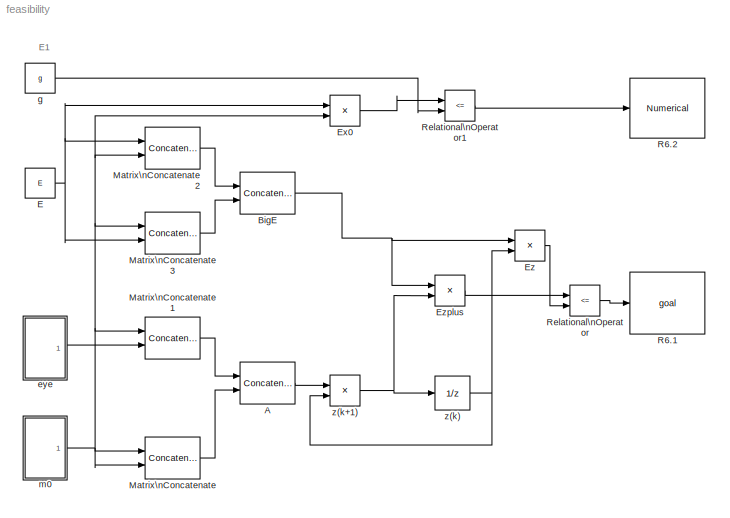
MODEL feasibility
KIND model
BLOCK [Concatenate] A
  Mode = Multidimensional array
  Ports = [2, 1]
  SID = 14
BLOCK [Concatenate] BigE
  Mode = Multidimensional array
  Ports = [2, 1]
  SID = 26
BLOCK [Constant] E
  SID = 23
  Value = E
BLOCK [Product] Ex0
  InputSameDT = off
  Multiplication = Matrix(*)
  OutDataTypeStr = Inherit: Inherit via internal rule
  Ports = [2, 1]
  RndMeth = Floor
  SID = 34
  SaturateOnIntegerOverflow = off
BLOCK [Product] Ez
  InputSameDT = off
  Multiplication = Matrix(*)
  OutDataTypeStr = Inherit: Inherit via internal rule
  Ports = [2, 1]
  RndMeth = Floor
  SID = 27
  SaturateOnIntegerOverflow = off
BLOCK [Product] Ezplus
  InputSameDT = off
  Multiplication = Matrix(*)
  OutDataTypeStr = Inherit: Inherit via internal rule
  Ports = [2, 1]
  RndMeth = Floor
  SID = 28
  SaturateOnIntegerOverflow = off
BLOCK [Concatenate] Matrix\nConcatenate
  ConcatenateDimension = 2
  Mode = Multidimensional array
  Ports = [2, 1]
  SID = 1
BLOCK [Concatenate] Matrix\nConcatenate1
  ConcatenateDimension = 2
  Mode = Multidimensional array
  Ports = [2, 1]
  SID = 8
BLOCK [Concatenate] Matrix\nConcatenate2
  ConcatenateDimension = 2
  Mode = Multidimensional array
  Ports = [2, 1]
  SID = 24
BLOCK [Concatenate] Matrix\nConcatenate3
  ConcatenateDimension = 2
  Mode = Multidimensional array
  Ports = [2, 1]
  SID = 25
BLOCK [Reference] R6.1  REF=goal/goal  (lib defined in mdl_8f4c38bfa861)
  FunctionWithSeparateData = off
  GeneratePreprocessorConditionals = off
  Ports = [1]
  SID = 31
  ShowPortLabels = FromPortIcon
  SourceBlock = goal/goal
  SourceType = Goal
  SystemSampleTime = -1
BLOCK [Reference] R6.2  REF=Numerical/Numerical
  FunctionWithSeparateData = off
  GeneratePreprocessorConditionals = off
  Ports = [1]
  SID = 32
  ShowPortLabels = FromPortIcon
  SourceBlock = Numerical/Numerical
  SourceType = Numerical
  SystemSampleTime = -1
BLOCK [RelationalOperator] Relational\nOperator
  InputSameDT = off
  Operator = <=
  OutDataTypeStr = boolean
  Ports = [2, 1]
  SID = 30
BLOCK [RelationalOperator] Relational\nOperator1
  InputSameDT = off
  Operator = <=
  OutDataTypeStr = boolean
  Ports = [2, 1]
  SID = 35
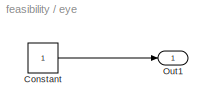
BLOCK [SubSystem] eye
  FunctionWithSeparateData = off
  MaskHideContents = off
  MinAlgLoopOccurrences = off
  Opaque = off
  Ports = [0, 1]
  PropExecContextOutsideSubsystem = off
  RTWSystemCode = Auto
  RequestExecContextInheritance = off
  SID = 19
BLOCK [Constant] eye/Constant
  SID = 9
BLOCK [Outport] eye/Out1
  IconDisplay = Port number
  SID = 20
BLOCK [Constant] g
  SID = 33
  Value = g
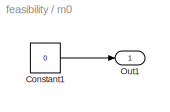
BLOCK [SubSystem] m0
  FunctionWithSeparateData = off
  MaskHideContents = off
  MinAlgLoopOccurrences = off
  Opaque = off
  Ports = [0, 1]
  PropExecContextOutsideSubsystem = off
  RTWSystemCode = Auto
  RequestExecContextInheritance = off
  SID = 21
BLOCK [Constant] m0/Constant1
  SID = 10
  Value = 0
BLOCK [Outport] m0/Out1
  IconDisplay = Port number
  SID = 22
BLOCK [UnitDelay] z(k)
  InitialCondition = [1;0.5]
  InputProcessing = Elements as channels (sample based)
  SID = 12
  SampleTime = -1
BLOCK [Product] z(k+1)
  InputSameDT = off
  Multiplication = Matrix(*)
  OutDataTypeStr = Inherit: Inherit via internal rule
  Ports = [2, 1]
  RndMeth = Floor
  SID = 15
  SaturateOnIntegerOverflow = off
ANNOTATION (root): E1
LINE A:1 -> z(k+1):1
NET BigE:1 -> Ez:1, Ezplus:1
NET E:1 -> Ex0:1, Matrix\nConcatenate2:1, Matrix\nConcatenate3:2
LINE Ex0:1 -> Relational\nOperator1:1
LINE Ez:1 -> Relational\nOperator:2
LINE Ezplus:1 -> Relational\nOperator:1
LINE Matrix\nConcatenate1:1 -> A:1
LINE Matrix\nConcatenate2:1 -> BigE:1
LINE Matrix\nConcatenate3:1 -> BigE:2
LINE Matrix\nConcatenate:1 -> A:2
LINE Relational\nOperator1:1 -> R6.2:1
LINE Relational\nOperator:1 -> R6.1:1
LINE eye/Constant:1 -> eye/Out1:1
LINE eye:1 -> Matrix\nConcatenate1:2
LINE g:1 -> Relational\nOperator1:2
LINE m0/Constant1:1 -> m0/Out1:1
NET m0:1 -> Ex0:2, Matrix\nConcatenate1:1, Matrix\nConcatenate2:2, Matrix\nConcatenate3:1, Matrix\nConcatenate:1, Matrix\nConcatenate:2
NET z(k):1 -> Ez:2, z(k+1):2
NET z(k+1):1 -> Ezplus:2, z(k):1
note: NET lines group one-source signal fan-out (src -> all destinations, sorted); 1:1 wires keep LINE
